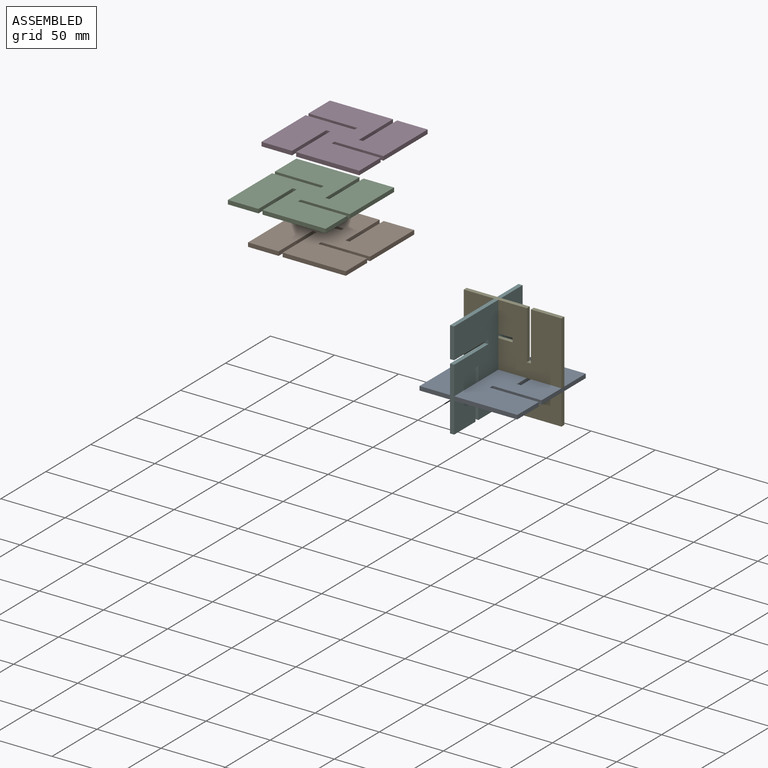
[diagram: assembled view]
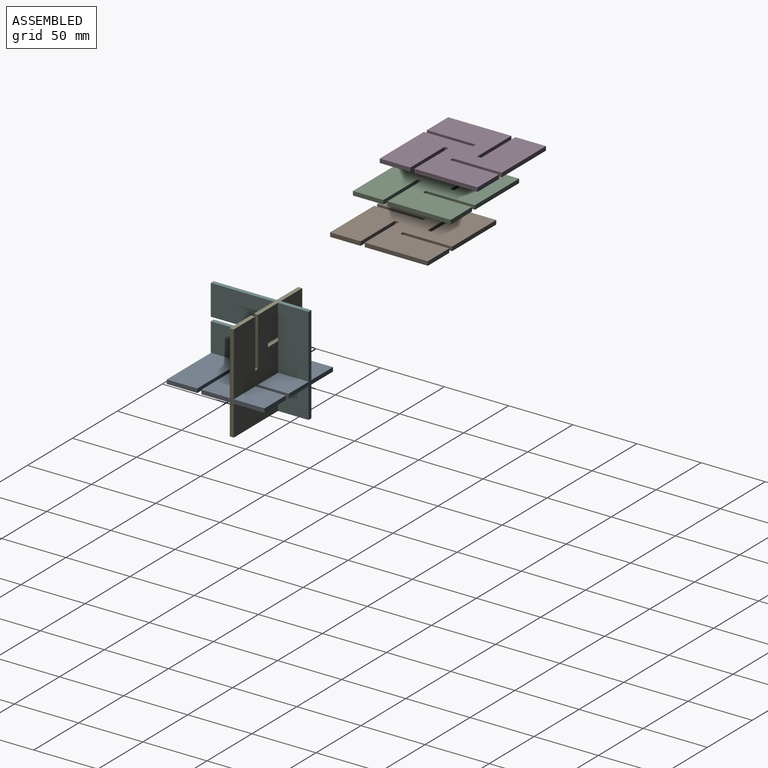
[diagram: assembled view, second angle]
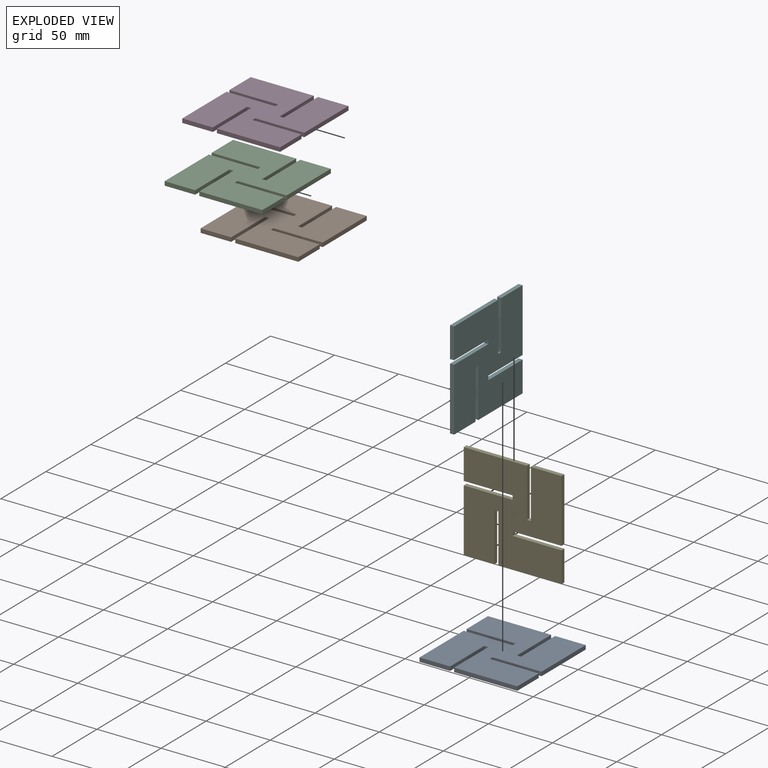
[diagram: exploded view]
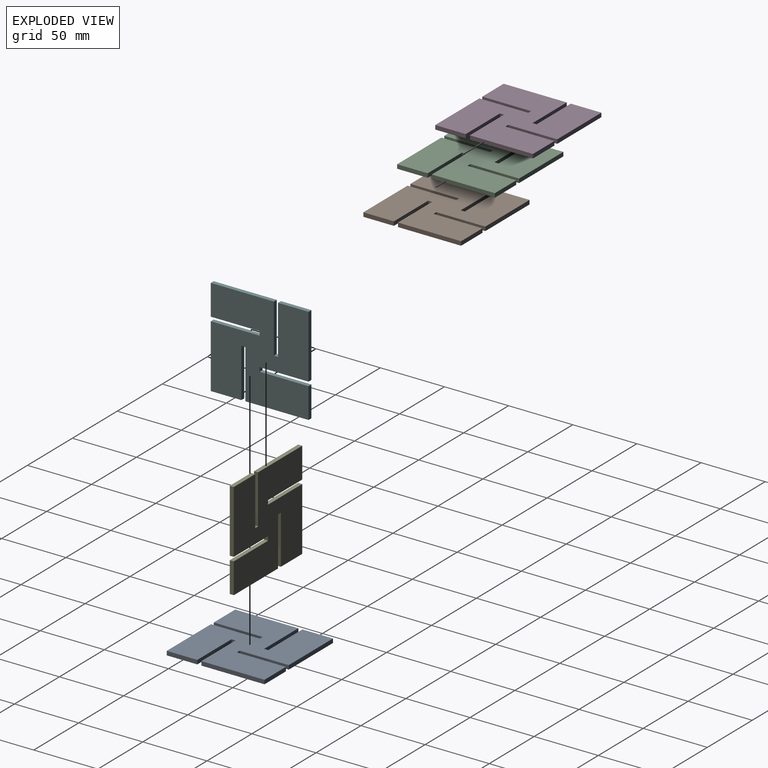
[diagram: exploded view, second angle]
ASSEMBLY  parts=6 mates=4
PART A: 22 faces, bbox 76.2x76.2x3.2 mm
  f0: plane 23.81x3.18mm, normal (0,-1,0), area 75.6mm2, adj f1,f19,f20,f21
  f1: plane 38.1x3.18mm, normal (1,0,0), area 121mm2, adj f0,f2,f20,f21
  f2: plane 3.18x3.18mm, normal (0,-1,0), area 10.1mm2, adj f1,f3,f20,f21
  f3: plane 38.1x3.18mm, normal (-1,0,0), area 121mm2, adj f2,f4,f20,f21
  f4: plane 49.21x3.18mm, normal (0,-1,0), area 156.2mm2, adj f3,f5,f20,f21
  f5: plane 23.81x3.18mm, normal (1,0,0), area 75.6mm2, adj f4,f6,f20,f21
  f6: plane 38.1x3.18mm, normal (0,1,0), area 121mm2, adj f5,f7,f20,f21
  f7: plane 3.18x3.18mm, normal (1,0,0), area 10.1mm2, adj f6,f8,f20,f21
  f8: plane 38.1x3.18mm, normal (0,-1,0), area 121mm2, adj f7,f9,f20,f21
  f9: plane 49.21x3.18mm, normal (1,0,0), area 156.2mm2, adj f8,f10,f20,f21
  f10: plane 23.81x3.18mm, normal (0,1,0), area 75.6mm2, adj f9,f11,f20,f21
  f11: plane 38.1x3.18mm, normal (-1,0,0), area 121mm2, adj f10,f12,f20,f21
  f12: plane 3.18x3.18mm, normal (0,1,0), area 10.1mm2, adj f11,f13,f20,f21
  f13: plane 38.1x3.18mm, normal (1,0,0), area 121mm2, adj f12,f14,f20,f21
  f14: plane 49.21x3.18mm, normal (0,1,0), area 156.2mm2, adj f13,f15,f20,f21
  f15: plane 23.81x3.18mm, normal (-1,0,0), area 75.6mm2, adj f14,f16,f20,f21
  f16: plane 38.1x3.18mm, normal (0,-1,0), area 121mm2, adj f15,f17,f20,f21
  f17: plane 3.18x3.18mm, normal (-1,0,0), area 10.1mm2, adj f16,f18,f20,f21
  f18: plane 38.1x3.18mm, normal (0,1,0), area 121mm2, adj f17,f19,f20,f21
  f19: plane 49.21x3.18mm, normal (-1,0,0), area 156.2mm2, adj f0,f18,f20,f21
  f20: plane 76.2x76.2mm, normal (0,0,1), area 5322.6mm2, adj f0,f1,f2,f3,f4,f5,f6,f7
  f21: plane 76.2x76.2mm, normal (0,0,-1), area 5322.6mm2, adj f0,f1,f2,f3,f4,f5,f6,f7
PART B: same geometry as A
PART C: same geometry as A
PART D: same geometry as A
PART E: same geometry as A
PART F: same geometry as A
PLACE A t=(166.1,-56.72,-95.51)mm
PLACE B t=(16.58,-34.11,-42.95)mm
PLACE C t=(-2.31,-29.58,-19.8)mm
PLACE D t=(5.4,-3.21,13.09)mm
PLACE E rot(axis=(1,0,0),90deg) t=(166.13,-4.44,-119.32)mm
PLACE F rot(axis=(0.58,0.58,0.58),120deg) t=(189.94,-56.82,-119.32)mm
MATE planar E.f8 <-> A.f20  axis (0,0,-1) through (223.28,-6.02,-92.34)mm
MATE planar F.f20 <-> E.f3  axis (1,0,0) through (193.11,-29.84,-81.22)mm
MATE planar E.f20 <-> F.f13  axis (0,-1,0) through (204.23,-7.61,-81.22)mm
MATE planar F.f4 <-> E.f4  axis (0,0,-1) through (191.53,-5.23,-119.32)mm
